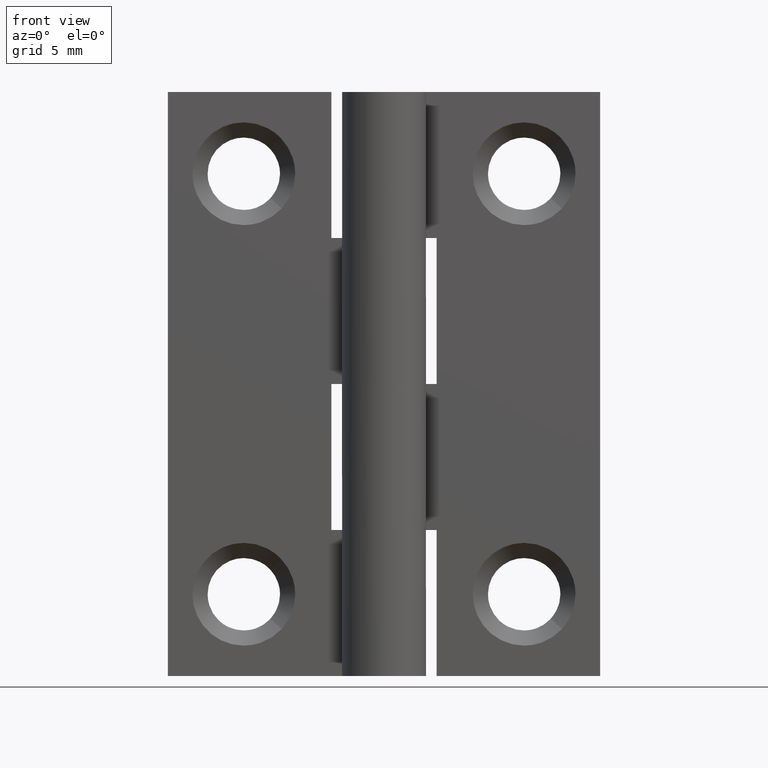
[diagram: clean part render]
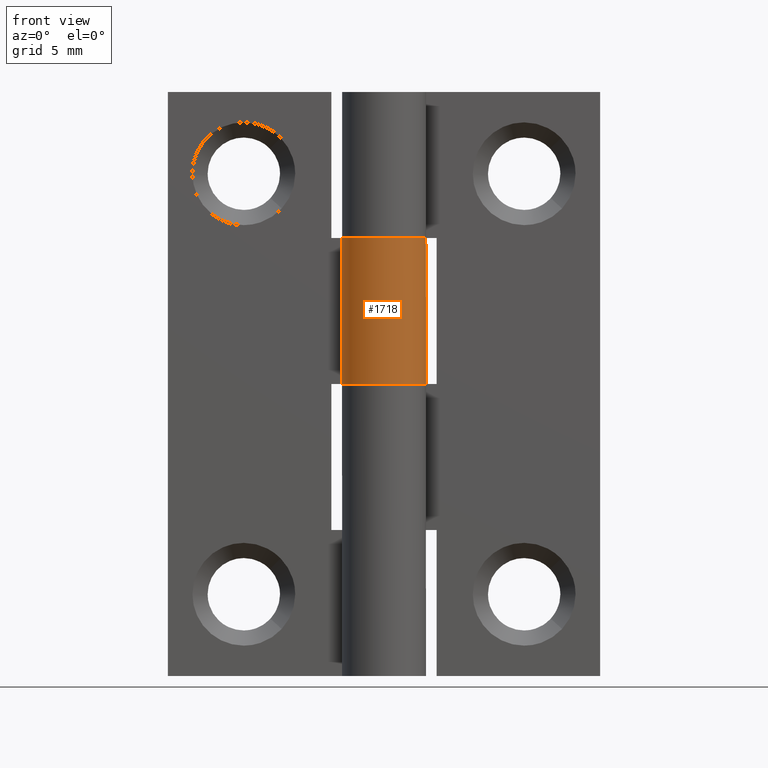
[diagram: same view with one face highlighted and labeled with its STEP entity id]
A machine part, front view. The second image highlights one B-rep face of the part: STEP entity #1718.
In plain terms, the highlighted face is a freeform B-spline surface patch.
Its self-contained STEP definition (entity closure, byte-faithful):
#1077=CARTESIAN_POINT('',(-1.528888485142070,0.950000000000000,18.750000000000000));
#1078=VERTEX_POINT('',#1077);
#1079=CARTESIAN_POINT('',(0.873813504473744,-1.573674032129689,18.750000000000000));
#1080=VERTEX_POINT('',#1079);
#1081=CARTESIAN_POINT('',(-1.528888485142070,0.950000000000000,18.750000000000000));
#1082=CARTESIAN_POINT('',(-1.607106039293310,0.824187223486603,18.749999999999950));
#1083=CARTESIAN_POINT('',(-1.711338730396337,0.598286987233811,18.750000000000050));
#1084=CARTESIAN_POINT('',(-1.782341008011420,0.290497598534668,18.750000000000000));
#1085=CARTESIAN_POINT('',(-1.805679119499543,0.025672584268979,18.749999999999950));
#1086=CARTESIAN_POINT('',(-1.791482695572548,-0.252677151760200,18.749999999999929));
#1087=CARTESIAN_POINT('',(-1.723447376599741,-0.548722816280913,18.750000000000000));
#1088=CARTESIAN_POINT('',(-1.618452306429636,-0.800085433756649,18.749999999999989));
#1089=CARTESIAN_POINT('',(-1.481080271392078,-1.034876308184954,18.750000000000171));
#1090=CARTESIAN_POINT('',(-1.274894615551840,-1.290678360996738,18.749999999999449));
#1091=CARTESIAN_POINT('',(-0.988676804023745,-1.520325536996747,18.750000000000089));
#1092=CARTESIAN_POINT('',(-0.661946631382885,-1.684352230729306,18.750000000000139));
#1093=CARTESIAN_POINT('',(-0.400204802289633,-1.761107736647887,18.749999999999929));
#1094=CARTESIAN_POINT('',(-0.125110099313776,-1.801670315439862,18.749999999999989));
#1095=CARTESIAN_POINT('',(0.172446226582086,-1.803923085103096,18.750000000000199));
#1096=CARTESIAN_POINT('',(0.531949379034901,-1.733612522464094,18.749999999999410));
#1097=CARTESIAN_POINT('',(0.765894552337896,-1.633617515369356,18.750000000000590));
#1098=CARTESIAN_POINT('',(0.873813504473744,-1.573674032129689,18.750000000000000));
#1099=B_SPLINE_CURVE_WITH_KNOTS('',3,(#1081,#1082,#1083,#1084,#1085,#1086,#1087,#1088,#1089,#1090,#1091,#1092,#1093,#1094,#1095,#1096,#1097,#1098),.UNSPECIFIED.,.F.,.U.,(4,1,1,1,1,1,1,1,1,1,1,1,1,1,1,4),(0.000000065683863,0.444426580322842,0.740718020111576,0.944416934885244,1.240706583757975,1.574030244638896,1.851810966288182,2.055511187357726,2.388806262122374,2.833241547670577,3.148058247482954,3.481382162291766,3.648045861484604,3.981371235893831,4.370259497456975,4.740606238552117),.UNSPECIFIED.);
#1100=EDGE_CURVE('',#1078,#1080,#1099,.T.);
#1102=CARTESIAN_POINT('',(0.001897366339662,1.799999000000000,18.750000000000000));
#1103=VERTEX_POINT('',#1102);
#1104=CARTESIAN_POINT('',(0.873813504473744,-1.573674032129689,18.750000000000000));
#1105=CARTESIAN_POINT('',(0.970952972273573,-1.519748568987884,18.750000000000011));
#1106=CARTESIAN_POINT('',(1.160318077417234,-1.390327352077242,18.749999999999950));
#1107=CARTESIAN_POINT('',(1.391737876359196,-1.156880570490763,18.750000000000089));
#1108=CARTESIAN_POINT('',(1.563330398569781,-0.906555450977426,18.749999999999929));
#1109=CARTESIAN_POINT('',(1.699677841316469,-0.621899771150032,18.750000000000011));
#1110=CARTESIAN_POINT('',(1.799509540053314,-0.256546526186142,18.749999999999961));
#1111=CARTESIAN_POINT('',(1.809706926987428,0.154362673549499,18.750000000000149));
#1112=CARTESIAN_POINT('',(1.723168135882539,0.567145962322292,18.750000000000011));
#1113=CARTESIAN_POINT('',(1.580389305847377,0.884594335595304,18.749999999999861));
#1114=CARTESIAN_POINT('',(1.370315523327458,1.183257417596501,18.750000000000298));
#1115=CARTESIAN_POINT('',(1.125656454120531,1.421763099450357,18.749999999999829));
#1116=CARTESIAN_POINT('',(0.852687867686055,1.593535875117568,18.750000000000270));
#1117=CARTESIAN_POINT('',(0.574534058559523,1.713574502022442,18.749999999999741));
#1118=CARTESIAN_POINT('',(0.304335942410318,1.783464117722436,18.750000000000409));
#1119=CARTESIAN_POINT('',(0.094483755326128,1.799904409004899,18.749999999999599));
#1120=CARTESIAN_POINT('',(0.001897366339662,1.799999000000000,18.750000000000000));
#1121=B_SPLINE_CURVE_WITH_KNOTS('',3,(#1104,#1105,#1106,#1107,#1108,#1109,#1110,#1111,#1112,#1113,#1114,#1115,#1116,#1117,#1118,#1119,#1120),.UNSPECIFIED.,.F.,.U.,(4,1,1,1,1,1,1,1,1,1,1,1,1,1,4),(0.000000065686379,0.333310818017425,0.685160096603327,0.981452100249272,1.240706585001707,1.629587391871595,2.111066019270665,2.462877736913283,2.888797744520367,3.148058250634858,3.555454960419304,3.907302838837866,4.111004118365405,4.462844279613573,4.740606243297177),.UNSPECIFIED.);
#1122=EDGE_CURVE('',#1080,#1103,#1121,.T.);
#1261=CARTESIAN_POINT('',(0.001897366339662,1.799999000000000,12.500000000000000));
#1262=VERTEX_POINT('',#1261);
#1263=CARTESIAN_POINT('',(0.873813508622129,-1.573674029826217,12.500000000000000));
#1264=VERTEX_POINT('',#1263);
#1265=CARTESIAN_POINT('',(0.001897366339662,1.799999000000000,12.500000000000000));
#1266=CARTESIAN_POINT('',(0.162390293064216,1.799883597696812,12.500000000000020));
#1267=CARTESIAN_POINT('',(0.403049061155832,1.767152396551549,12.499999999999989));
#1268=CARTESIAN_POINT('',(0.753565504419876,1.644983246114290,12.499999999999970));
#1269=CARTESIAN_POINT('',(1.002779000694228,1.505484875737012,12.500000000000099));
#1270=CARTESIAN_POINT('',(1.238400741524164,1.314912142172058,12.499999999999829));
#1271=CARTESIAN_POINT('',(1.406680077735794,1.133088664498628,12.500000000000140));
#1272=CARTESIAN_POINT('',(1.560928479695096,0.908913517755171,12.499999999999931));
#1273=CARTESIAN_POINT('',(1.700806580770180,0.625702797918042,12.499999999999980));
#1274=CARTESIAN_POINT('',(1.786464985796658,0.301166889455542,12.499999999999890));
#1275=CARTESIAN_POINT('',(1.810474243312635,-0.081936646640196,12.500000000000041));
#1276=CARTESIAN_POINT('',(1.760854179515934,-0.439252079230905,12.500000000000020));
#1277=CARTESIAN_POINT('',(1.638725717952109,-0.764401044978662,12.499999999999959));
#1278=CARTESIAN_POINT('',(1.490188981225081,-1.021530792803124,12.500000000000149));
#1279=CARTESIAN_POINT('',(1.262439708003412,-1.307306596872149,12.499999999999490));
#1280=CARTESIAN_POINT('',(1.035765993172733,-1.483855360959351,12.500000000001030));
#1281=CARTESIAN_POINT('',(0.873813508622129,-1.573674029826217,12.500000000000000));
#1282=B_SPLINE_CURVE_WITH_KNOTS('',3,(#1265,#1266,#1267,#1268,#1269,#1270,#1271,#1272,#1273,#1274,#1275,#1276,#1277,#1278,#1279,#1280,#1281),.UNSPECIFIED.,.F.,.U.,(4,1,1,1,1,1,1,1,1,1,1,1,1,1,4),(0.000000065684743,0.481456680141884,0.722193998787944,1.111078779752752,1.333296845997680,1.629587390239202,1.851810966288546,2.148093887043683,2.573987078793365,2.851769696629347,3.296202912187137,3.648045861484675,3.888780264926519,4.185069677473219,4.740606238552130),.UNSPECIFIED.);
#1283=EDGE_CURVE('',#1262,#1264,#1282,.T.);
#1285=CARTESIAN_POINT('',(-1.528888485142070,0.950000000000000,12.500000000000000));
#1286=VERTEX_POINT('',#1285);
#1287=CARTESIAN_POINT('',(0.873813508622129,-1.573674029826217,12.500000000000000));
#1288=CARTESIAN_POINT('',(0.787473435636148,-1.621622039389502,12.499999999999980));
#1289=CARTESIAN_POINT('',(0.595590040115898,-1.708364323084690,12.500000000000050));
#1290=CARTESIAN_POINT('',(0.295247839364574,-1.784962130040891,12.499999999999950));
#1291=CARTESIAN_POINT('',(0.004960428190279,-1.806703624728632,12.500000000000060));
#1292=CARTESIAN_POINT('',(-0.285005443516335,-1.785103464460106,12.499999999999920));
#1293=CARTESIAN_POINT('',(-0.568440751992582,-1.717595295217018,12.500000000000190));
#1294=CARTESIAN_POINT('',(-0.835556979598642,-1.601888972341139,12.499999999999860));
#1295=CARTESIAN_POINT('',(-1.087478906022832,-1.444690173219160,12.500000000000000));
#1296=CARTESIAN_POINT('',(-1.315453849452459,-1.243736861154634,12.500000000000179));
#1297=CARTESIAN_POINT('',(-1.513792387409578,-0.989809218768494,12.499999999999950));
#1298=CARTESIAN_POINT('',(-1.648717240432361,-0.738875238052887,12.499999999999940));
#1299=CARTESIAN_POINT('',(-1.744745743886171,-0.470988297077589,12.500000000000210));
#1300=CARTESIAN_POINT('',(-1.806756610188321,-0.148486753044964,12.500000000000000));
#1301=CARTESIAN_POINT('',(-1.801325505814161,0.193344716379971,12.500000000000069));
#1302=CARTESIAN_POINT('',(-1.718189303478305,0.580759488954602,12.499999999999810));
#1303=CARTESIAN_POINT('',(-1.613642819785439,0.813711870658674,12.500000000000229));
#1304=CARTESIAN_POINT('',(-1.528888485142070,0.950000000000000,12.500000000000000));
#1305=B_SPLINE_CURVE_WITH_KNOTS('',3,(#1287,#1288,#1289,#1290,#1291,#1292,#1293,#1294,#1295,#1296,#1297,#1298,#1299,#1300,#1301,#1302,#1303,#1304),.UNSPECIFIED.,.F.,.U.,(4,1,1,1,1,1,1,1,1,1,1,1,1,1,1,4),(0.000000065680972,0.296282320274270,0.629603191601443,0.925896262311872,1.166633830777129,1.499963537346757,1.796256062927854,2.036983383903703,2.388806264511820,2.703622699789694,2.999912857381333,3.240646671555254,3.555454960417825,3.981371239878429,4.259149232439118,4.740606243297198),.UNSPECIFIED.);
#1306=EDGE_CURVE('',#1264,#1286,#1305,.T.);
#1676=CARTESIAN_POINT('',(-1.528888485142070,0.950000000000000,18.750000000000000));
#1677=CARTESIAN_POINT('',(-1.528888485142070,0.950000000000000,12.500000000000000));
#1678=QUASI_UNIFORM_CURVE('',1,(#1676,#1677),.UNSPECIFIED.,.F.,.U.);
#1679=EDGE_CURVE('',#1078,#1286,#1678,.T.);
#1684=CARTESIAN_POINT('',(-1.499946419177528,0.995068208514627,18.906250000000000));
#1685=CARTESIAN_POINT('',(-1.499946419177528,0.995068208514627,12.339843750000000));
#1686=CARTESIAN_POINT('',(-2.743476502170754,-0.879404796616865,18.906250000000000));
#1687=CARTESIAN_POINT('',(-2.743476502170754,-0.879404796616865,12.339843750000000));
#1688=CARTESIAN_POINT('',(-0.641944330105382,-1.681638331225103,18.906250000000000));
#1689=CARTESIAN_POINT('',(-0.641944330105382,-1.681638331225103,12.339843750000000));
#1690=CARTESIAN_POINT('',(1.459587841959990,-2.483871865833341,18.906250000000000));
#1691=CARTESIAN_POINT('',(1.459587841959990,-2.483871865833341,12.339843750000000));
#1692=CARTESIAN_POINT('',(1.781475758198995,-0.257573529209263,18.906250000000000));
#1693=CARTESIAN_POINT('',(1.781475758198995,-0.257573529209263,12.339843750000000));
#1694=CARTESIAN_POINT('',(2.103363674437998,1.968724807414816,18.906250000000000));
#1695=CARTESIAN_POINT('',(2.103363674437998,1.968724807414816,12.339843750000000));
#1696=CARTESIAN_POINT('',(-0.139334776458573,1.794599069449563,18.906250000000000));
#1697=CARTESIAN_POINT('',(-0.139334776458573,1.794599069449563,12.339843750000000));
#1705=(BOUNDED_SURFACE()B_SPLINE_SURFACE(1,2,((#1684,#1686,#1688,#1690,#1692,#1694,#1696),(#1685,#1687,#1689,#1691,#1693,#1695,#1697)),.UNSPECIFIED.,.F.,.F.,.U.)B_SPLINE_SURFACE_WITH_KNOTS((2,2),(3,2,2,3),(0.0,6.566406250000000),(0.0,3.459968446201030,6.919936892402060,10.379905338603090),.UNSPECIFIED.)GEOMETRIC_REPRESENTATION_ITEM()RATIONAL_B_SPLINE_SURFACE(((1.0,0.624788514543960,1.0,0.624788514543960,1.0,0.624788514543960,1.0),(1.0,0.624788514543960,1.0,0.624788514543960,1.0,0.624788514543960,1.0)))REPRESENTATION_ITEM('')SURFACE());
#1706=ORIENTED_EDGE('',*,*,#1122,.F.);
#1707=ORIENTED_EDGE('',*,*,#1100,.F.);
#1708=ORIENTED_EDGE('',*,*,#1679,.T.);
#1709=ORIENTED_EDGE('',*,*,#1306,.F.);
#1710=ORIENTED_EDGE('',*,*,#1283,.F.);
#1711=CARTESIAN_POINT('',(0.001897366339662,1.799999000000000,18.750000000000000));
#1712=CARTESIAN_POINT('',(0.001897366339662,1.799999000000000,12.500000000000000));
#1713=QUASI_UNIFORM_CURVE('',1,(#1711,#1712),.UNSPECIFIED.,.F.,.U.);
#1714=EDGE_CURVE('',#1103,#1262,#1713,.T.);
#1715=ORIENTED_EDGE('',*,*,#1714,.F.);
#1716=EDGE_LOOP('',(#1706,#1707,#1708,#1709,#1710,#1715));
#1717=FACE_OUTER_BOUND('',#1716,.T.);
#1718=ADVANCED_FACE('',(#1717),#1705,.T.);